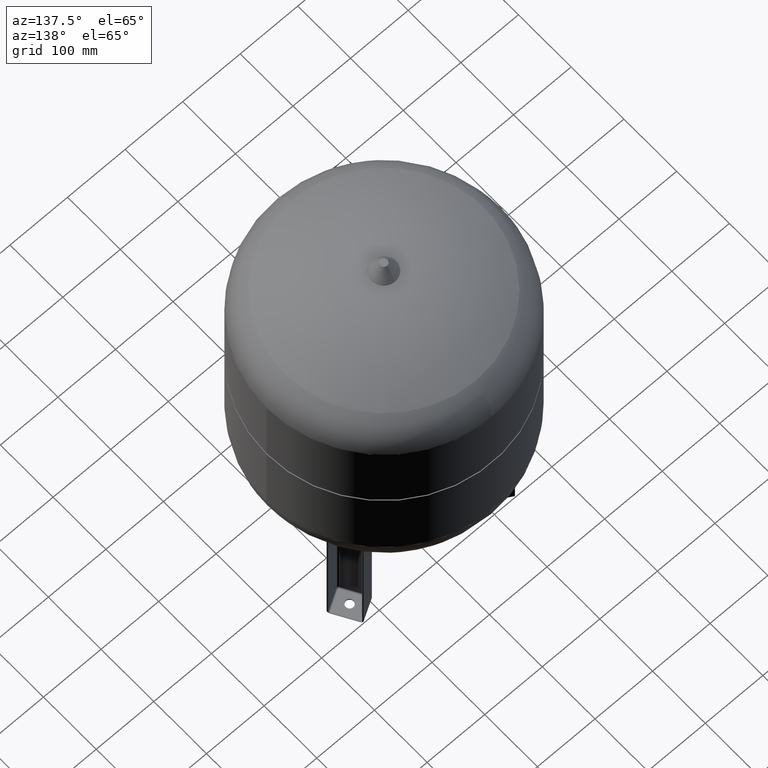
[diagram: clean part render]
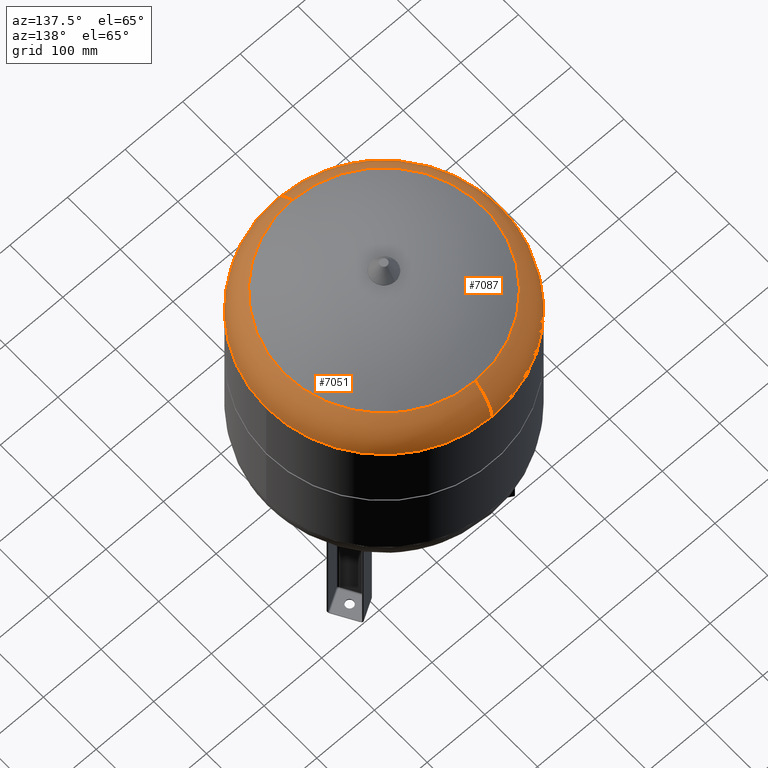
[diagram: same view with one multi-face feature highlighted, each face labeled with its STEP entity id]
A machine part, auxiliary view. The highlighted faces form ONE feature: a constant-radius fillet chain: 2 tangent blend faces with common blend radius 72.5 mm. The faces share edges in the B-rep.
Their STEP definitions:
[1] entity #7087 (Torus):
#6973=CARTESIAN_POINT('',(-204.500000000000030,2.519948E-014,592.850736659031900));
#6974=VERTEX_POINT('',#6973);
#6981=CARTESIAN_POINT('',(6.991514E-015,204.500000000000000,592.850736659031900));
#6982=VERTEX_POINT('',#6981);
#6983=CARTESIAN_POINT('',(-1.400938E-014,1.562778E-016,592.850736659031900));
#6984=DIRECTION('',(0.0,0.0,-1.0));
#6985=DIRECTION('',(1.0,0.0,0.0));
#6986=AXIS2_PLACEMENT_3D('',#6983,#6984,#6985);
#6987=CIRCLE('',#6986,204.500000000000000);
#6988=EDGE_CURVE('',#6974,#6982,#6987,.T.);
#7005=CARTESIAN_POINT('',(-1.805169E-014,-204.500000000000000,592.850736659031900));
#7006=VERTEX_POINT('',#7005);
#7007=CARTESIAN_POINT('',(-1.288327E-014,-173.608695652173960,652.222164518944170));
#7008=VERTEX_POINT('',#7007);
#7009=CARTESIAN_POINT('',(-1.805169E-014,-132.000000000000060,592.850736659031900));
#7010=DIRECTION('',(-1.0,0.0,0.0));
#7011=DIRECTION('',(0.0,-1.0,0.0));
#7012=AXIS2_PLACEMENT_3D('',#7009,#7010,#7011);
#7013=CIRCLE('',#7012,72.500000000000000);
#7014=EDGE_CURVE('',#7006,#7008,#7013,.T.);
#7024=CARTESIAN_POINT('',(8.376960E-015,173.608695652173960,652.222164518944170));
#7025=VERTEX_POINT('',#7024);
#7026=CARTESIAN_POINT('',(-1.886882E-015,132.000000000000060,592.850736659031900));
#7027=DIRECTION('',(1.0,0.0,0.0));
#7028=DIRECTION('',(0.0,1.0,0.0));
#7029=AXIS2_PLACEMENT_3D('',#7026,#7027,#7028);
#7030=CIRCLE('',#7029,72.500000000000000);
#7031=EDGE_CURVE('',#6982,#7025,#7030,.T.);
#7059=CARTESIAN_POINT('',(-8.840965E-015,1.106263E-014,652.222164518944170));
#7060=DIRECTION('',(0.0,0.0,-1.0));
#7061=DIRECTION('',(1.0,0.0,0.0));
#7062=AXIS2_PLACEMENT_3D('',#7059,#7060,#7061);
#7063=CIRCLE('',#7062,173.608695652173960);
#7064=EDGE_CURVE('',#7008,#7025,#7063,.T.);
#7069=CARTESIAN_POINT('',(-1.805169E-014,1.562778E-016,592.850736659031900));
#7070=DIRECTION('',(-8.705222E-017,-1.836970E-016,-1.0));
#7071=DIRECTION('',(0.0,-1.0,0.0));
#7072=AXIS2_PLACEMENT_3D('',#7069,#7070,#7071);
#7073=TOROIDAL_SURFACE('',#7072,132.000000000000060,72.500000000000000);
#7074=ORIENTED_EDGE('',*,*,#7014,.T.);
#7075=ORIENTED_EDGE('',*,*,#7064,.T.);
#7076=ORIENTED_EDGE('',*,*,#7031,.F.);
#7077=ORIENTED_EDGE('',*,*,#6988,.F.);
#7078=CARTESIAN_POINT('',(-1.400938E-014,1.562778E-016,592.850736659031900));
#7079=DIRECTION('',(0.0,0.0,-1.0));
#7080=DIRECTION('',(1.0,0.0,0.0));
#7081=AXIS2_PLACEMENT_3D('',#7078,#7079,#7080);
#7082=CIRCLE('',#7081,204.500000000000000);
#7083=EDGE_CURVE('',#7006,#6974,#7082,.T.);
#7084=ORIENTED_EDGE('',*,*,#7083,.F.);
#7085=EDGE_LOOP('',(#7074,#7075,#7076,#7077,#7084));
#7086=FACE_OUTER_BOUND('',#7085,.T.);
#7087=ADVANCED_FACE('',(#7086),#7073,.T.);
[2] entity #7051 (Torus):
#6956=CARTESIAN_POINT('',(204.500000000000000,1.562778E-016,592.850736659031900));
#6957=VERTEX_POINT('',#6956);
#6981=CARTESIAN_POINT('',(6.991514E-015,204.500000000000000,592.850736659031900));
#6982=VERTEX_POINT('',#6981);
#6990=CARTESIAN_POINT('',(-1.400938E-014,1.562778E-016,592.850736659031900));
#6991=DIRECTION('',(0.0,0.0,-1.0));
#6992=DIRECTION('',(1.0,0.0,0.0));
#6993=AXIS2_PLACEMENT_3D('',#6990,#6991,#6992);
#6994=CIRCLE('',#6993,204.500000000000000);
#6995=EDGE_CURVE('',#6982,#6957,#6994,.T.);
#7000=CARTESIAN_POINT('',(-1.805169E-014,1.562778E-016,592.850736659031900));
#7001=DIRECTION('',(-8.705222E-017,-1.836970E-016,-1.0));
#7002=DIRECTION('',(0.0,-1.0,0.0));
#7003=AXIS2_PLACEMENT_3D('',#7000,#7001,#7002);
#7004=TOROIDAL_SURFACE('',#7003,132.000000000000060,72.500000000000000);
#7005=CARTESIAN_POINT('',(-1.805169E-014,-204.500000000000000,592.850736659031900));
#7006=VERTEX_POINT('',#7005);
#7007=CARTESIAN_POINT('',(-1.288327E-014,-173.608695652173960,652.222164518944170));
#7008=VERTEX_POINT('',#7007);
#7009=CARTESIAN_POINT('',(-1.805169E-014,-132.000000000000060,592.850736659031900));
#7010=DIRECTION('',(-1.0,0.0,0.0));
#7011=DIRECTION('',(0.0,-1.0,0.0));
#7012=AXIS2_PLACEMENT_3D('',#7009,#7010,#7011);
#7013=CIRCLE('',#7012,72.500000000000000);
#7014=EDGE_CURVE('',#7006,#7008,#7013,.T.);
#7015=ORIENTED_EDGE('',*,*,#7014,.F.);
#7016=CARTESIAN_POINT('',(-1.400938E-014,1.562778E-016,592.850736659031900));
#7017=DIRECTION('',(0.0,0.0,-1.0));
#7018=DIRECTION('',(1.0,0.0,0.0));
#7019=AXIS2_PLACEMENT_3D('',#7016,#7017,#7018);
#7020=CIRCLE('',#7019,204.500000000000000);
#7021=EDGE_CURVE('',#6957,#7006,#7020,.T.);
#7022=ORIENTED_EDGE('',*,*,#7021,.F.);
#7023=ORIENTED_EDGE('',*,*,#6995,.F.);
#7024=CARTESIAN_POINT('',(8.376960E-015,173.608695652173960,652.222164518944170));
#7025=VERTEX_POINT('',#7024);
#7026=CARTESIAN_POINT('',(-1.886882E-015,132.000000000000060,592.850736659031900));
#7027=DIRECTION('',(1.0,0.0,0.0));
#7028=DIRECTION('',(0.0,1.0,0.0));
#7029=AXIS2_PLACEMENT_3D('',#7026,#7027,#7028);
#7030=CIRCLE('',#7029,72.500000000000000);
#7031=EDGE_CURVE('',#6982,#7025,#7030,.T.);
#7032=ORIENTED_EDGE('',*,*,#7031,.T.);
#7033=CARTESIAN_POINT('',(173.608695652173960,1.106263E-014,652.222164518944170));
#7034=VERTEX_POINT('',#7033);
#7035=CARTESIAN_POINT('',(-8.840965E-015,1.106263E-014,652.222164518944170));
#7036=DIRECTION('',(0.0,0.0,-1.0));
#7037=DIRECTION('',(1.0,0.0,0.0));
#7038=AXIS2_PLACEMENT_3D('',#7035,#7036,#7037);
#7039=CIRCLE('',#7038,173.608695652173960);
#7040=EDGE_CURVE('',#7025,#7034,#7039,.T.);
#7041=ORIENTED_EDGE('',*,*,#7040,.T.);
#7042=CARTESIAN_POINT('',(-8.840965E-015,1.106263E-014,652.222164518944170));
#7043=DIRECTION('',(0.0,0.0,-1.0));
#7044=DIRECTION('',(1.0,0.0,0.0));
#7045=AXIS2_PLACEMENT_3D('',#7042,#7043,#7044);
#7046=CIRCLE('',#7045,173.608695652173960);
#7047=EDGE_CURVE('',#7034,#7008,#7046,.T.);
#7048=ORIENTED_EDGE('',*,*,#7047,.T.);
#7049=EDGE_LOOP('',(#7015,#7022,#7023,#7032,#7041,#7048));
#7050=FACE_OUTER_BOUND('',#7049,.T.);
#7051=ADVANCED_FACE('',(#7050),#7004,.T.);